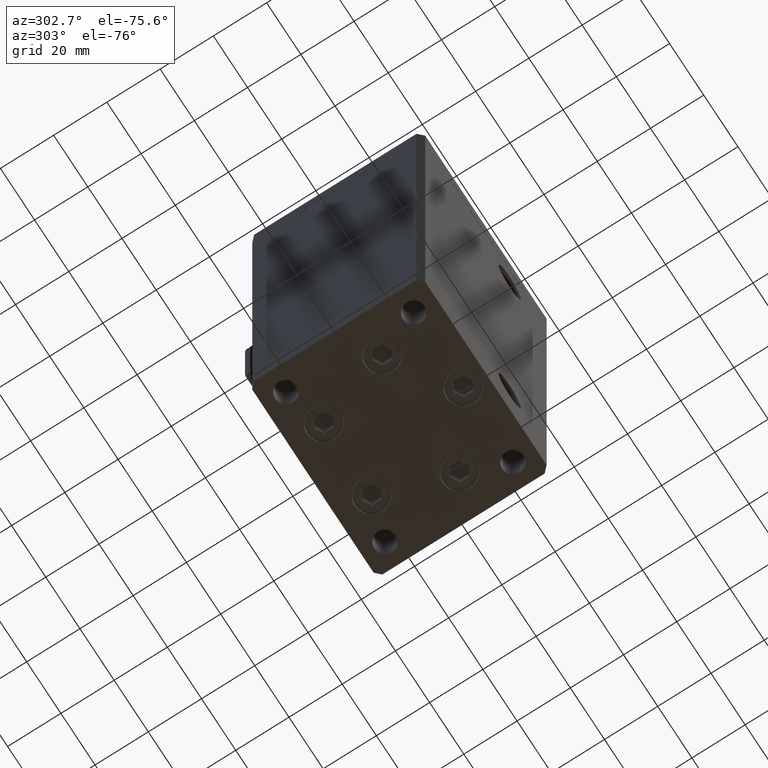
[diagram: clean part render]
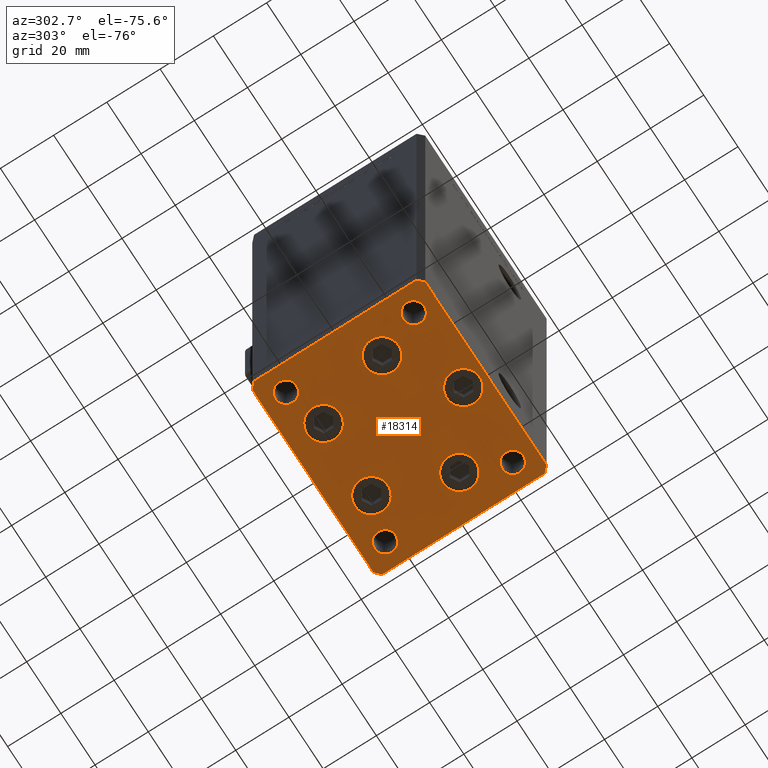
[diagram: same view with one face highlighted and labeled with its STEP entity id]
A machine part, auxiliary view. The second image highlights one B-rep face of the part: STEP entity #18314.
In plain terms, the highlighted planar face has unit normal (0, 0, -1).
Its self-contained STEP definition (entity closure, byte-faithful):
#189 = DIRECTION ( 'NONE',  ( 0.000000000000000000, -0.000000000000000000, -1.000000000000000000 ) ) ;
#360 = EDGE_CURVE ( 'NONE', #32829, #17399, #48512, .T. ) ;
#866 = DIRECTION ( 'NONE',  ( -0.000000000000000000, 0.000000000000000000, 1.000000000000000000 ) ) ;
#868 = DIRECTION ( 'NONE',  ( 1.000000000000000000, 0.000000000000000000, 0.000000000000000000 ) ) ;
#1008 = VERTEX_POINT ( 'NONE', #23255 ) ;
#1067 = ORIENTED_EDGE ( 'NONE', *, *, #360, .T. ) ;
#1266 = EDGE_CURVE ( 'NONE', #18504, #31244, #47775, .T. ) ;
#1469 = CARTESIAN_POINT ( 'NONE',  ( 35.49999999999992184, 32.50000000000000711, 0.000000000000000000 ) ) ;
#1509 = FACE_BOUND ( 'NONE', #48349, .T. ) ;
#1987 = CARTESIAN_POINT ( 'NONE',  ( 37.49999999999992184, 30.50000000000001066, 0.000000000000000000 ) ) ;
#2262 = EDGE_CURVE ( 'NONE', #31244, #18504, #8627, .T. ) ;
#2330 = ORIENTED_EDGE ( 'NONE', *, *, #45215, .T. ) ;
#2914 = DIRECTION ( 'NONE',  ( 1.000000000000000000, 0.000000000000000000, 0.000000000000000000 ) ) ;
#3026 = EDGE_CURVE ( 'NONE', #1008, #22444, #14801, .T. ) ;
#3265 = ORIENTED_EDGE ( 'NONE', *, *, #2262, .T. ) ;
#3647 = CARTESIAN_POINT ( 'NONE',  ( 22.62741699796951877, -8.000000000000000000, 0.000000000000000000 ) ) ;
#3890 = EDGE_CURVE ( 'NONE', #30735, #46002, #9538, .T. ) ;
#3985 = VERTEX_POINT ( 'NONE', #25205 ) ;
#4085 = EDGE_CURVE ( 'NONE', #31813, #4408, #6874, .T. ) ;
#4109 = LINE ( 'NONE', #33934, #36930 ) ;
#4379 = CARTESIAN_POINT ( 'NONE',  ( -29.00000000000001066, -23.99999999999999289, 0.000000000000000000 ) ) ;
#4408 = VERTEX_POINT ( 'NONE', #42715 ) ;
#5076 = EDGE_CURVE ( 'NONE', #4408, #31813, #46106, .T. ) ;
#5141 = CARTESIAN_POINT ( 'NONE',  ( -28.87741699796952233, -8.000000000000005329, 0.000000000000000000 ) ) ;
#5415 = FACE_BOUND ( 'NONE', #8910, .T. ) ;
#5499 = VECTOR ( 'NONE', #11306, 1000.000000000000000 ) ;
#5700 = DIRECTION ( 'NONE',  ( 0.000000000000000000, -0.000000000000000000, -1.000000000000000000 ) ) ;
#5815 = ORIENTED_EDGE ( 'NONE', *, *, #44015, .T. ) ;
#6003 = AXIS2_PLACEMENT_3D ( 'NONE', #33852, #20475, #12633 ) ;
#6034 = VERTEX_POINT ( 'NONE', #16011 ) ;
#6352 = LINE ( 'NONE', #23353, #46784 ) ;
#6874 = CIRCLE ( 'NONE', #6003, 6.250000000000000000 ) ;
#6920 = EDGE_LOOP ( 'NONE', ( #5815, #40982 ) ) ;
#7044 = DIRECTION ( 'NONE',  ( 1.000000000000000000, 0.000000000000000000, 0.000000000000000000 ) ) ;
#7754 = AXIS2_PLACEMENT_3D ( 'NONE', #35588, #13256, #34482 ) ;
#7760 = ORIENTED_EDGE ( 'NONE', *, *, #22639, .T. ) ;
#8086 = EDGE_LOOP ( 'NONE', ( #39817, #41048 ) ) ;
#8318 = DIRECTION ( 'NONE',  ( 1.000000000000000000, 0.000000000000000000, 0.000000000000000000 ) ) ;
#8498 = EDGE_CURVE ( 'NONE', #3985, #28237, #22011, .T. ) ;
#8627 = CIRCLE ( 'NONE', #36221, 6.250000000000000000 ) ;
#8910 = EDGE_LOOP ( 'NONE', ( #25739, #32838 ) ) ;
#9321 = FACE_BOUND ( 'NONE', #6920, .T. ) ;
#9394 = ORIENTED_EDGE ( 'NONE', *, *, #54905, .T. ) ;
#9538 = CIRCLE ( 'NONE', #7754, 4.000000000000003553 ) ;
#9561 = EDGE_CURVE ( 'NONE', #28237, #3985, #40805, .T. ) ;
#9678 = CARTESIAN_POINT ( 'NONE',  ( 7.741068579633223479, 19.50000000000000000, 0.000000000000000000 ) ) ;
#10843 = CARTESIAN_POINT ( 'NONE',  ( -29.00000000000001066, 24.00000000000000711, 0.000000000000000000 ) ) ;
#11059 = ORIENTED_EDGE ( 'NONE', *, *, #28344, .T. ) ;
#11306 = DIRECTION ( 'NONE',  ( -1.478780668045802821E-15, 1.000000000000000000, 0.000000000000000000 ) ) ;
#11352 = ORIENTED_EDGE ( 'NONE', *, *, #3026, .F. ) ;
#11614 = EDGE_LOOP ( 'NONE', ( #52394, #49389 ) ) ;
#11888 = CARTESIAN_POINT ( 'NONE',  ( -29.00000000000001066, 24.00000000000000711, 0.000000000000000000 ) ) ;
#12633 = DIRECTION ( 'NONE',  ( 1.000000000000000000, 0.000000000000000000, 0.000000000000000000 ) ) ;
#12768 = CARTESIAN_POINT ( 'NONE',  ( 37.50000000000001421, -30.50000000000000711, 0.000000000000000000 ) ) ;
#12796 = DIRECTION ( 'NONE',  ( 1.000000000000000000, 0.000000000000000000, 0.000000000000000000 ) ) ;
#12997 = DIRECTION ( 'NONE',  ( 1.000000000000000000, 0.000000000000000000, 0.000000000000000000 ) ) ;
#13011 = CARTESIAN_POINT ( 'NONE',  ( 25.00000000000000711, -23.99999999999999289, 0.000000000000000000 ) ) ;
#13256 = DIRECTION ( 'NONE',  ( -0.000000000000000000, 0.000000000000000000, 1.000000000000000000 ) ) ;
#13321 = CIRCLE ( 'NONE', #22243, 4.000000000000000000 ) ;
#13567 = VECTOR ( 'NONE', #50785, 1000.000000000000000 ) ;
#13905 = LINE ( 'NONE', #35416, #16222 ) ;
#14034 = FACE_BOUND ( 'NONE', #39073, .T. ) ;
#14209 = EDGE_CURVE ( 'NONE', #20822, #32792, #28545, .T. ) ;
#14801 = CIRCLE ( 'NONE', #46027, 3.999999999999996447 ) ;
#15088 = DIRECTION ( 'NONE',  ( 1.000000000000000000, 0.000000000000000000, 0.000000000000000000 ) ) ;
#15306 = CIRCLE ( 'NONE', #41060, 4.000000000000003553 ) ;
#15587 = DIRECTION ( 'NONE',  ( 0.000000000000000000, -0.000000000000000000, -1.000000000000000000 ) ) ;
#15752 = LINE ( 'NONE', #53718, #5499 ) ;
#15784 = DIRECTION ( 'NONE',  ( -0.000000000000000000, 0.000000000000000000, 1.000000000000000000 ) ) ;
#16011 = CARTESIAN_POINT ( 'NONE',  ( 28.87741699796952233, -8.000000000000000000, 0.000000000000000000 ) ) ;
#16222 = VECTOR ( 'NONE', #34297, 1000.000000000000000 ) ;
#16237 = CARTESIAN_POINT ( 'NONE',  ( -6.249999999999997335, -24.00000000000000000, 0.000000000000000000 ) ) ;
#16520 = VERTEX_POINT ( 'NONE', #48520 ) ;
#16746 = LINE ( 'NONE', #37163, #13567 ) ;
#16867 = VERTEX_POINT ( 'NONE', #1469 ) ;
#16906 = AXIS2_PLACEMENT_3D ( 'NONE', #26515, #39082, #868 ) ;
#17030 = EDGE_CURVE ( 'NONE', #22397, #16520, #34042, .T. ) ;
#17399 = VERTEX_POINT ( 'NONE', #51824 ) ;
#17659 = EDGE_CURVE ( 'NONE', #16520, #32829, #40100, .T. ) ;
#18225 = FACE_BOUND ( 'NONE', #40170, .T. ) ;
#18314 = ADVANCED_FACE ( 'NONE', ( #1509, #9321, #43348, #14034, #26317, #51991, #18225, #22684, #30785, #5415 ), #31067, .T. ) ;
#18503 = DIRECTION ( 'NONE',  ( -0.000000000000000000, 0.000000000000000000, 1.000000000000000000 ) ) ;
#18504 = VERTEX_POINT ( 'NONE', #16237 ) ;
#18664 = DIRECTION ( 'NONE',  ( 1.000000000000000000, 0.000000000000000000, 0.000000000000000000 ) ) ;
#18894 = VERTEX_POINT ( 'NONE', #9678 ) ;
#19170 = DIRECTION ( 'NONE',  ( -0.7071067811865482389, 0.7071067811865469066, 0.000000000000000000 ) ) ;
#19211 = DIRECTION ( 'NONE',  ( -0.000000000000000000, 0.000000000000000000, 1.000000000000000000 ) ) ;
#19462 = ORIENTED_EDGE ( 'NONE', *, *, #20881, .F. ) ;
#19835 = DIRECTION ( 'NONE',  ( 0.000000000000000000, -0.000000000000000000, -1.000000000000000000 ) ) ;
#20456 = CARTESIAN_POINT ( 'NONE',  ( 2.939152317953647500E-15, -24.00000000000000000, 0.000000000000000000 ) ) ;
#20475 = DIRECTION ( 'NONE',  ( 0.000000000000000000, -0.000000000000000000, -1.000000000000000000 ) ) ;
#20822 = VERTEX_POINT ( 'NONE', #34310 ) ;
#20881 = EDGE_CURVE ( 'NONE', #22444, #1008, #22168, .T. ) ;
#21280 = AXIS2_PLACEMENT_3D ( 'NONE', #10843, #19211, #18664 ) ;
#21707 = EDGE_CURVE ( 'NONE', #6034, #41192, #35616, .T. ) ;
#22011 = CIRCLE ( 'NONE', #33625, 6.250000000000001776 ) ;
#22168 = CIRCLE ( 'NONE', #21280, 3.999999999999996447 ) ;
#22243 = AXIS2_PLACEMENT_3D ( 'NONE', #4379, #189, #12997 ) ;
#22397 = VERTEX_POINT ( 'NONE', #44432 ) ;
#22444 = VERTEX_POINT ( 'NONE', #23218 ) ;
#22639 = EDGE_CURVE ( 'NONE', #33185, #33159, #36524, .T. ) ;
#22684 = FACE_BOUND ( 'NONE', #46811, .T. ) ;
#22852 = EDGE_CURVE ( 'NONE', #32792, #20822, #13321, .T. ) ;
#23192 = DIRECTION ( 'NONE',  ( 0.000000000000000000, -0.000000000000000000, -1.000000000000000000 ) ) ;
#23218 = CARTESIAN_POINT ( 'NONE',  ( -25.00000000000001421, 24.00000000000000711, 0.000000000000000000 ) ) ;
#23255 = CARTESIAN_POINT ( 'NONE',  ( -33.00000000000000711, 24.00000000000000711, 0.000000000000000000 ) ) ;
#23353 = CARTESIAN_POINT ( 'NONE',  ( 37.49999999999992184, 30.50000000000001066, 0.000000000000000000 ) ) ;
#23430 = CARTESIAN_POINT ( 'NONE',  ( -35.49999999999998579, -32.50000000000001421, 0.000000000000000000 ) ) ;
#24936 = DIRECTION ( 'NONE',  ( 0.000000000000000000, -0.000000000000000000, -1.000000000000000000 ) ) ;
#25111 = AXIS2_PLACEMENT_3D ( 'NONE', #3647, #37947, #12796 ) ;
#25205 = CARTESIAN_POINT ( 'NONE',  ( -16.37741699796951877, -8.000000000000005329, 0.000000000000000000 ) ) ;
#25266 = DIRECTION ( 'NONE',  ( 1.000000000000000000, 0.000000000000000000, 0.000000000000000000 ) ) ;
#25377 = ORIENTED_EDGE ( 'NONE', *, *, #17659, .T. ) ;
#25652 = VERTEX_POINT ( 'NONE', #1987 ) ;
#25739 = ORIENTED_EDGE ( 'NONE', *, *, #22852, .T. ) ;
#26317 = FACE_BOUND ( 'NONE', #8086, .T. ) ;
#26515 = CARTESIAN_POINT ( 'NONE',  ( 29.00000000000001066, -23.99999999999999289, 0.000000000000000000 ) ) ;
#27082 = ORIENTED_EDGE ( 'NONE', *, *, #28903, .T. ) ;
#27161 = DIRECTION ( 'NONE',  ( 1.000000000000000000, 0.000000000000000000, 0.000000000000000000 ) ) ;
#27219 = VECTOR ( 'NONE', #52420, 1000.000000000000000 ) ;
#27892 = VERTEX_POINT ( 'NONE', #42608 ) ;
#28237 = VERTEX_POINT ( 'NONE', #5141 ) ;
#28344 = EDGE_CURVE ( 'NONE', #41192, #6034, #30440, .T. ) ;
#28545 = CIRCLE ( 'NONE', #40260, 4.000000000000000000 ) ;
#28587 = CIRCLE ( 'NONE', #52636, 4.000000000000003553 ) ;
#28903 = EDGE_CURVE ( 'NONE', #33159, #33185, #15306, .T. ) ;
#29228 = AXIS2_PLACEMENT_3D ( 'NONE', #51440, #18503, #35543 ) ;
#29306 = CARTESIAN_POINT ( 'NONE',  ( -22.62741699796951877, -8.000000000000005329, 0.000000000000000000 ) ) ;
#29384 = DIRECTION ( 'NONE',  ( 1.000000000000000000, 0.000000000000000000, 0.000000000000000000 ) ) ;
#29848 = DIRECTION ( 'NONE',  ( 4.550094363217855288E-16, -1.000000000000000000, 0.000000000000000000 ) ) ;
#30287 = EDGE_CURVE ( 'NONE', #46002, #30735, #28587, .T. ) ;
#30291 = DIRECTION ( 'NONE',  ( 0.7071067811865487940, 0.7071067811865463515, 0.000000000000000000 ) ) ;
#30440 = CIRCLE ( 'NONE', #25111, 6.250000000000001776 ) ;
#30735 = VERTEX_POINT ( 'NONE', #40399 ) ;
#30785 = FACE_OUTER_BOUND ( 'NONE', #47081, .T. ) ;
#31067 = PLANE ( 'NONE',  #29228 ) ;
#31244 = VERTEX_POINT ( 'NONE', #50611 ) ;
#31813 = VERTEX_POINT ( 'NONE', #32576 ) ;
#32038 = EDGE_CURVE ( 'NONE', #53599, #25652, #15752, .T. ) ;
#32576 = CARTESIAN_POINT ( 'NONE',  ( -20.24106857963322881, 19.49999999999999645, 0.000000000000000000 ) ) ;
#32792 = VERTEX_POINT ( 'NONE', #41028 ) ;
#32829 = VERTEX_POINT ( 'NONE', #23430 ) ;
#32838 = ORIENTED_EDGE ( 'NONE', *, *, #14209, .T. ) ;
#32906 = CARTESIAN_POINT ( 'NONE',  ( 22.62741699796951877, -8.000000000000000000, 0.000000000000000000 ) ) ;
#33159 = VERTEX_POINT ( 'NONE', #13011 ) ;
#33185 = VERTEX_POINT ( 'NONE', #47077 ) ;
#33411 = VERTEX_POINT ( 'NONE', #42809 ) ;
#33625 = AXIS2_PLACEMENT_3D ( 'NONE', #36372, #5700, #27161 ) ;
#33738 = EDGE_CURVE ( 'NONE', #33411, #22397, #13905, .T. ) ;
#33851 = CARTESIAN_POINT ( 'NONE',  ( -13.99106857963322703, 19.49999999999999645, 0.000000000000000000 ) ) ;
#33852 = CARTESIAN_POINT ( 'NONE',  ( -13.99106857963322703, 19.49999999999999645, 0.000000000000000000 ) ) ;
#33908 = ORIENTED_EDGE ( 'NONE', *, *, #5076, .T. ) ;
#33934 = CARTESIAN_POINT ( 'NONE',  ( 35.50000000000000711, -32.50000000000000711, 0.000000000000000000 ) ) ;
#34042 = LINE ( 'NONE', #37437, #48781 ) ;
#34297 = DIRECTION ( 'NONE',  ( -0.7071067811865426878, -0.7071067811865524577, 0.000000000000000000 ) ) ;
#34310 = CARTESIAN_POINT ( 'NONE',  ( -33.00000000000000711, -23.99999999999999289, 0.000000000000000000 ) ) ;
#34482 = DIRECTION ( 'NONE',  ( 1.000000000000000000, 0.000000000000000000, 0.000000000000000000 ) ) ;
#34629 = ORIENTED_EDGE ( 'NONE', *, *, #32038, .T. ) ;
#34906 = ORIENTED_EDGE ( 'NONE', *, *, #48987, .T. ) ;
#35272 = AXIS2_PLACEMENT_3D ( 'NONE', #41061, #23192, #15088 ) ;
#35416 = CARTESIAN_POINT ( 'NONE',  ( -35.50000000000002842, 32.49999999999999289, 0.000000000000000000 ) ) ;
#35543 = DIRECTION ( 'NONE',  ( 1.000000000000000000, 0.000000000000000000, 0.000000000000000000 ) ) ;
#35588 = CARTESIAN_POINT ( 'NONE',  ( 29.00000000000001066, 24.00000000000000711, 0.000000000000000000 ) ) ;
#35616 = CIRCLE ( 'NONE', #55191, 6.250000000000001776 ) ;
#35773 = CIRCLE ( 'NONE', #37586, 6.250000000000000000 ) ;
#36221 = AXIS2_PLACEMENT_3D ( 'NONE', #40569, #40294, #44471 ) ;
#36372 = CARTESIAN_POINT ( 'NONE',  ( -22.62741699796951877, -8.000000000000005329, 0.000000000000000000 ) ) ;
#36449 = ORIENTED_EDGE ( 'NONE', *, *, #33738, .T. ) ;
#36524 = CIRCLE ( 'NONE', #16906, 4.000000000000003553 ) ;
#36930 = VECTOR ( 'NONE', #30291, 1000.000000000000000 ) ;
#36999 = DIRECTION ( 'NONE',  ( 1.000000000000000000, 0.000000000000000000, 0.000000000000000000 ) ) ;
#37163 = CARTESIAN_POINT ( 'NONE',  ( 35.49999999999992184, 32.50000000000000711, 0.000000000000000000 ) ) ;
#37437 = CARTESIAN_POINT ( 'NONE',  ( -37.50000000000001421, 30.49999999999998579, 0.000000000000000000 ) ) ;
#37456 = CARTESIAN_POINT ( 'NONE',  ( 13.99106857963322348, 19.50000000000000000, 0.000000000000000000 ) ) ;
#37586 = AXIS2_PLACEMENT_3D ( 'NONE', #37456, #44705, #7044 ) ;
#37947 = DIRECTION ( 'NONE',  ( 0.000000000000000000, -0.000000000000000000, -1.000000000000000000 ) ) ;
#39073 = EDGE_LOOP ( 'NONE', ( #49452, #3265 ) ) ;
#39082 = DIRECTION ( 'NONE',  ( 0.000000000000000000, -0.000000000000000000, -1.000000000000000000 ) ) ;
#39817 = ORIENTED_EDGE ( 'NONE', *, *, #9561, .T. ) ;
#40100 = LINE ( 'NONE', #53477, #41670 ) ;
#40170 = EDGE_LOOP ( 'NONE', ( #7760, #27082 ) ) ;
#40260 = AXIS2_PLACEMENT_3D ( 'NONE', #54377, #54647, #8318 ) ;
#40294 = DIRECTION ( 'NONE',  ( 0.000000000000000000, -0.000000000000000000, -1.000000000000000000 ) ) ;
#40399 = CARTESIAN_POINT ( 'NONE',  ( 33.00000000000001421, 24.00000000000000711, 0.000000000000000000 ) ) ;
#40569 = CARTESIAN_POINT ( 'NONE',  ( 2.939152317953647500E-15, -24.00000000000000000, 0.000000000000000000 ) ) ;
#40805 = CIRCLE ( 'NONE', #48796, 6.250000000000001776 ) ;
#40982 = ORIENTED_EDGE ( 'NONE', *, *, #45535, .T. ) ;
#41028 = CARTESIAN_POINT ( 'NONE',  ( -25.00000000000001066, -23.99999999999999289, 0.000000000000000000 ) ) ;
#41048 = ORIENTED_EDGE ( 'NONE', *, *, #8498, .T. ) ;
#41060 = AXIS2_PLACEMENT_3D ( 'NONE', #41999, #45910, #36999 ) ;
#41061 = CARTESIAN_POINT ( 'NONE',  ( 13.99106857963322348, 19.50000000000000000, 0.000000000000000000 ) ) ;
#41121 = DIRECTION ( 'NONE',  ( 0.000000000000000000, -0.000000000000000000, -1.000000000000000000 ) ) ;
#41192 = VERTEX_POINT ( 'NONE', #43186 ) ;
#41336 = DIRECTION ( 'NONE',  ( 1.000000000000000000, 0.000000000000000000, 0.000000000000000000 ) ) ;
#41670 = VECTOR ( 'NONE', #52924, 1000.000000000000114 ) ;
#41999 = CARTESIAN_POINT ( 'NONE',  ( 29.00000000000001066, -23.99999999999999289, 0.000000000000000000 ) ) ;
#42252 = ORIENTED_EDGE ( 'NONE', *, *, #17030, .T. ) ;
#42608 = CARTESIAN_POINT ( 'NONE',  ( 20.24106857963322526, 19.50000000000000000, 0.000000000000000000 ) ) ;
#42708 = CARTESIAN_POINT ( 'NONE',  ( 25.00000000000000711, 24.00000000000000711, 0.000000000000000000 ) ) ;
#42715 = CARTESIAN_POINT ( 'NONE',  ( -7.741068579633227031, 19.49999999999999645, 0.000000000000000000 ) ) ;
#42809 = CARTESIAN_POINT ( 'NONE',  ( -35.50000000000002842, 32.49999999999999289, 0.000000000000000000 ) ) ;
#43186 = CARTESIAN_POINT ( 'NONE',  ( 16.37741699796951877, -8.000000000000000000, 0.000000000000000000 ) ) ;
#43348 = FACE_BOUND ( 'NONE', #46185, .T. ) ;
#43483 = ORIENTED_EDGE ( 'NONE', *, *, #4085, .T. ) ;
#44015 = EDGE_CURVE ( 'NONE', #18894, #27892, #53102, .T. ) ;
#44432 = CARTESIAN_POINT ( 'NONE',  ( -37.50000000000001421, 30.49999999999998579, 0.000000000000000000 ) ) ;
#44471 = DIRECTION ( 'NONE',  ( 1.000000000000000000, 0.000000000000000000, 0.000000000000000000 ) ) ;
#44705 = DIRECTION ( 'NONE',  ( 0.000000000000000000, -0.000000000000000000, -1.000000000000000000 ) ) ;
#45215 = EDGE_CURVE ( 'NONE', #25652, #16867, #6352, .T. ) ;
#45535 = EDGE_CURVE ( 'NONE', #27892, #18894, #35773, .T. ) ;
#45910 = DIRECTION ( 'NONE',  ( 0.000000000000000000, -0.000000000000000000, -1.000000000000000000 ) ) ;
#46002 = VERTEX_POINT ( 'NONE', #42708 ) ;
#46013 = DIRECTION ( 'NONE',  ( 1.000000000000000000, 0.000000000000000000, 0.000000000000000000 ) ) ;
#46027 = AXIS2_PLACEMENT_3D ( 'NONE', #11888, #15784, #25266 ) ;
#46106 = CIRCLE ( 'NONE', #49678, 6.250000000000000000 ) ;
#46185 = EDGE_LOOP ( 'NONE', ( #11059, #47407 ) ) ;
#46784 = VECTOR ( 'NONE', #19170, 999.9999999999998863 ) ;
#46811 = EDGE_LOOP ( 'NONE', ( #19462, #11352 ) ) ;
#47077 = CARTESIAN_POINT ( 'NONE',  ( 33.00000000000001421, -23.99999999999999289, 0.000000000000000000 ) ) ;
#47081 = EDGE_LOOP ( 'NONE', ( #25377, #1067, #9394, #34629, #2330, #34906, #36449, #42252 ) ) ;
#47407 = ORIENTED_EDGE ( 'NONE', *, *, #21707, .T. ) ;
#47775 = CIRCLE ( 'NONE', #50441, 6.250000000000000000 ) ;
#48349 = EDGE_LOOP ( 'NONE', ( #43483, #33908 ) ) ;
#48512 = LINE ( 'NONE', #49334, #27219 ) ;
#48520 = CARTESIAN_POINT ( 'NONE',  ( -37.49999999999998579, -30.50000000000001421, 0.000000000000000000 ) ) ;
#48781 = VECTOR ( 'NONE', #29848, 1000.000000000000000 ) ;
#48796 = AXIS2_PLACEMENT_3D ( 'NONE', #29306, #19835, #41336 ) ;
#48987 = EDGE_CURVE ( 'NONE', #16867, #33411, #16746, .T. ) ;
#49334 = CARTESIAN_POINT ( 'NONE',  ( -35.49999999999998579, -32.50000000000001421, 0.000000000000000000 ) ) ;
#49389 = ORIENTED_EDGE ( 'NONE', *, *, #30287, .F. ) ;
#49452 = ORIENTED_EDGE ( 'NONE', *, *, #1266, .T. ) ;
#49678 = AXIS2_PLACEMENT_3D ( 'NONE', #33851, #24936, #29384 ) ;
#50441 = AXIS2_PLACEMENT_3D ( 'NONE', #20456, #41121, #2914 ) ;
#50611 = CARTESIAN_POINT ( 'NONE',  ( 6.250000000000002665, -24.00000000000000000, 0.000000000000000000 ) ) ;
#50785 = DIRECTION ( 'NONE',  ( -1.000000000000000000, -1.954618001100629052E-16, 0.000000000000000000 ) ) ;
#50807 = DIRECTION ( 'NONE',  ( 1.000000000000000000, 0.000000000000000000, 0.000000000000000000 ) ) ;
#51440 = CARTESIAN_POINT ( 'NONE',  ( 0.000000000000000000, 0.000000000000000000, 0.000000000000000000 ) ) ;
#51628 = CARTESIAN_POINT ( 'NONE',  ( 29.00000000000001066, 24.00000000000000711, 0.000000000000000000 ) ) ;
#51824 = CARTESIAN_POINT ( 'NONE',  ( 35.50000000000000711, -32.50000000000000711, 0.000000000000000000 ) ) ;
#51991 = FACE_BOUND ( 'NONE', #11614, .T. ) ;
#52394 = ORIENTED_EDGE ( 'NONE', *, *, #3890, .F. ) ;
#52420 = DIRECTION ( 'NONE',  ( 1.000000000000000000, 9.773090005503140331E-17, 0.000000000000000000 ) ) ;
#52636 = AXIS2_PLACEMENT_3D ( 'NONE', #51628, #866, #50807 ) ;
#52924 = DIRECTION ( 'NONE',  ( 0.7071067811865474617, -0.7071067811865474617, 0.000000000000000000 ) ) ;
#53102 = CIRCLE ( 'NONE', #35272, 6.250000000000000000 ) ;
#53477 = CARTESIAN_POINT ( 'NONE',  ( -37.49999999999998579, -30.50000000000001421, 0.000000000000000000 ) ) ;
#53599 = VERTEX_POINT ( 'NONE', #12768 ) ;
#53718 = CARTESIAN_POINT ( 'NONE',  ( 37.50000000000001421, -30.50000000000000711, 0.000000000000000000 ) ) ;
#54377 = CARTESIAN_POINT ( 'NONE',  ( -29.00000000000001066, -23.99999999999999289, 0.000000000000000000 ) ) ;
#54647 = DIRECTION ( 'NONE',  ( 0.000000000000000000, -0.000000000000000000, -1.000000000000000000 ) ) ;
#54905 = EDGE_CURVE ( 'NONE', #17399, #53599, #4109, .T. ) ;
#55191 = AXIS2_PLACEMENT_3D ( 'NONE', #32906, #15587, #46013 ) ;